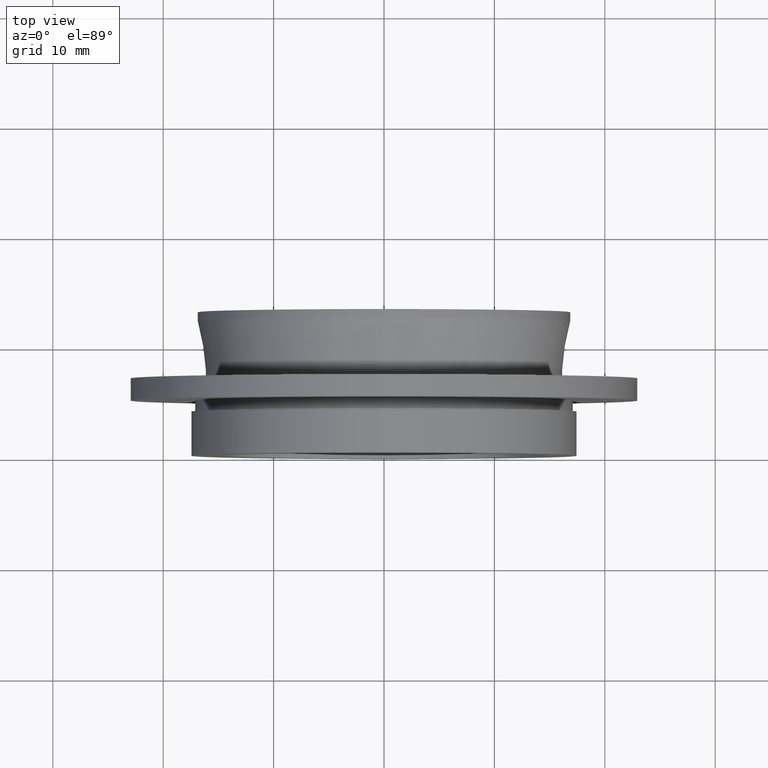
[diagram: clean part render]
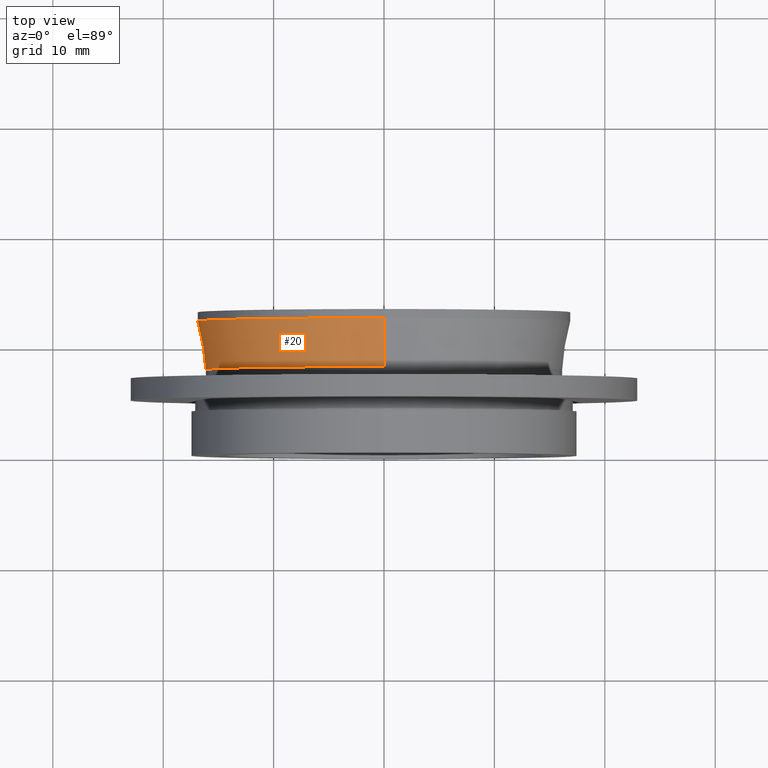
[diagram: same view with one face highlighted and labeled with its STEP entity id]
A machine part, top view. The second image highlights one B-rep face of the part: STEP entity #20.
In plain terms, the highlighted conical surface has half-angle 9.42 deg.
Its self-contained STEP definition (entity closure, byte-faithful):
#20 = ADVANCED_FACE ( 'NONE', ( #329 ), #107, .T. ) ;
#31 = AXIS2_PLACEMENT_3D ( 'NONE', #266, #631, #159 ) ;
#89 = CARTESIAN_POINT ( 'NONE',  ( 0.0000000000000000000, 7.799999999999998900, 16.13500000000001200 ) ) ;
#105 = DIRECTION ( 'NONE',  ( 0.0000000000000000000, 1.000000000000000000, 0.0000000000000000000 ) ) ;
#107 = CONICAL_SURFACE ( 'NONE', #616, 16.86499999999999800, 0.1644114862470237900 ) ;
#131 = AXIS2_PLACEMENT_3D ( 'NONE', #479, #535, #317 ) ;
#133 = DIRECTION ( 'NONE',  ( 2.004401237060916700E-017, 0.9865148492742908900, -0.1636717818114136200 ) ) ;
#143 = EDGE_CURVE ( 'NONE', #634, #163, #178, .T. ) ;
#159 = DIRECTION ( 'NONE',  ( 0.0000000000000000000, 0.0000000000000000000, -1.000000000000000000 ) ) ;
#163 = VERTEX_POINT ( 'NONE', #169 ) ;
#169 = CARTESIAN_POINT ( 'NONE',  ( 0.0000000000000000000, 12.19999999999999900, -16.86499999999999800 ) ) ;
#178 = CIRCLE ( 'NONE', #131, 16.86499999999999800 ) ;
#185 = CIRCLE ( 'NONE', #31, 16.13500000000001200 ) ;
#186 = CARTESIAN_POINT ( 'NONE',  ( 0.0000000000000000000, 12.19999999999999900, 16.86499999999999800 ) ) ;
#187 = VECTOR ( 'NONE', #290, 1000.000000000000100 ) ;
#188 = ORIENTED_EDGE ( 'NONE', *, *, #143, .T. ) ;
#197 = CARTESIAN_POINT ( 'NONE',  ( 2.065366826762010800E-015, 12.19999999999999900, 16.86499999999999800 ) ) ;
#209 = CARTESIAN_POINT ( 'NONE',  ( 0.0000000000000000000, 12.19999999999999900, 0.0000000000000000000 ) ) ;
#214 = LINE ( 'NONE', #186, #187 ) ;
#230 = CARTESIAN_POINT ( 'NONE',  ( 2.065366826762010800E-015, 12.19999999999999900, -16.86499999999999800 ) ) ;
#245 = EDGE_CURVE ( 'NONE', #463, #634, #214, .T. ) ;
#263 = EDGE_CURVE ( 'NONE', #665, #163, #608, .T. ) ;
#266 = CARTESIAN_POINT ( 'NONE',  ( 0.0000000000000000000, 7.799999999999998900, 0.0000000000000000000 ) ) ;
#290 = DIRECTION ( 'NONE',  ( 0.0000000000000000000, 0.9865148492742908900, 0.1636717818114136200 ) ) ;
#314 = EDGE_LOOP ( 'NONE', ( #400, #491, #518, #188 ) ) ;
#317 = DIRECTION ( 'NONE',  ( 0.0000000000000000000, 0.0000000000000000000, -1.000000000000000000 ) ) ;
#329 = FACE_OUTER_BOUND ( 'NONE', #314, .T. ) ;
#368 = CARTESIAN_POINT ( 'NONE',  ( 2.020667218593133100E-015, 7.799999999999998900, -16.13500000000001200 ) ) ;
#400 = ORIENTED_EDGE ( 'NONE', *, *, #263, .F. ) ;
#463 = VERTEX_POINT ( 'NONE', #89 ) ;
#479 = CARTESIAN_POINT ( 'NONE',  ( 0.0000000000000000000, 12.19999999999999900, 0.0000000000000000000 ) ) ;
#491 = ORIENTED_EDGE ( 'NONE', *, *, #619, .F. ) ;
#508 = VECTOR ( 'NONE', #133, 1000.000000000000100 ) ;
#518 = ORIENTED_EDGE ( 'NONE', *, *, #245, .T. ) ;
#535 = DIRECTION ( 'NONE',  ( -0.0000000000000000000, -1.000000000000000000, -0.0000000000000000000 ) ) ;
#575 = DIRECTION ( 'NONE',  ( 0.0000000000000000000, 0.0000000000000000000, 1.000000000000000000 ) ) ;
#608 = LINE ( 'NONE', #230, #508 ) ;
#616 = AXIS2_PLACEMENT_3D ( 'NONE', #209, #105, #575 ) ;
#619 = EDGE_CURVE ( 'NONE', #463, #665, #185, .T. ) ;
#631 = DIRECTION ( 'NONE',  ( -0.0000000000000000000, -1.000000000000000000, -0.0000000000000000000 ) ) ;
#634 = VERTEX_POINT ( 'NONE', #197 ) ;
#665 = VERTEX_POINT ( 'NONE', #368 ) ;